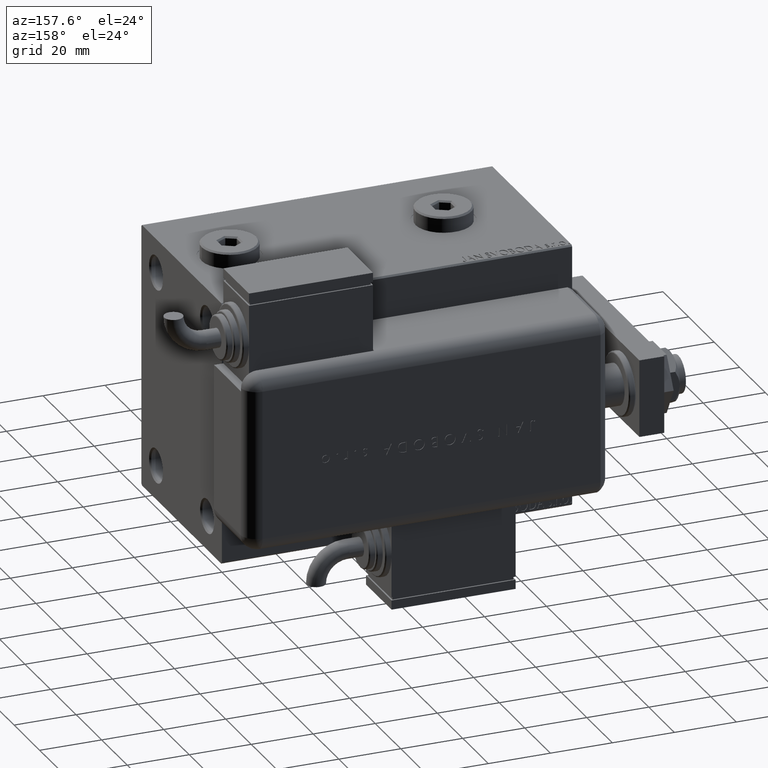
[diagram: clean part render]
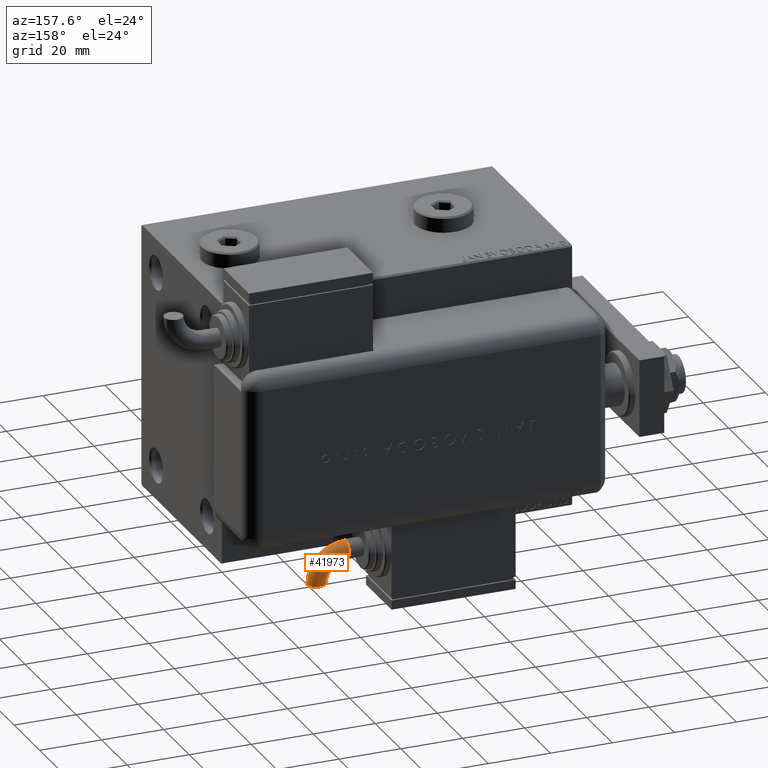
[diagram: same view with one face highlighted and labeled with its STEP entity id]
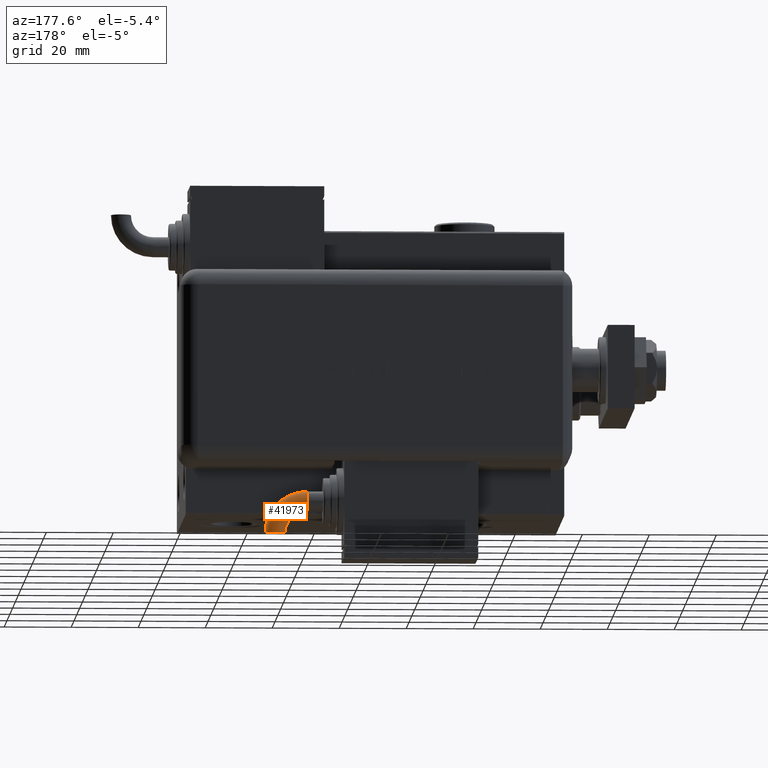
[diagram: same view with one face highlighted and labeled with its STEP entity id]
A machine part, auxiliary view. The second image highlights one B-rep face of the part: STEP entity #41973.
A second angle (auxiliary view) of the same face is appended — the face is thin or edge-on in the first view.
In plain terms, the highlighted toroidal blend (fillet) surface has major radius 9.5072 mm and minor (blend) radius 3 mm.
Its self-contained STEP definition (entity closure, byte-faithful):
#1597 = FACE_OUTER_BOUND ( 'NONE', #57714, .T. ) ;
#1768 = EDGE_CURVE ( 'NONE', #4390, #20438, #17097, .T. ) ;
#2754 = CARTESIAN_POINT ( 'NONE',  ( -40.25922829605691078, -9.507281895111381331, 0.000000000000000000 ) ) ;
#3059 = DIRECTION ( 'NONE',  ( -0.9999999999726024713, -7.402363701169985951E-06, 0.000000000000000000 ) ) ;
#3228 = CARTESIAN_POINT ( 'NONE',  ( -30.75201677704342274, -9.507211519273942812, 0.000000000000000000 ) ) ;
#4390 = VERTEX_POINT ( 'NONE', #56477 ) ;
#4871 = CARTESIAN_POINT ( 'NONE',  ( -30.75201677704342274, -9.507211519273942812, -3.673940397442055924E-16 ) ) ;
#7042 = AXIS2_PLACEMENT_3D ( 'NONE', #16353, #53907, #11399 ) ;
#7179 = DIRECTION ( 'NONE',  ( 1.000000000000000000, 0.000000000000000000, 0.000000000000000000 ) ) ;
#9981 = VERTEX_POINT ( 'NONE', #52132 ) ;
#11399 = DIRECTION ( 'NONE',  ( -1.156482317317872908E-15, 1.000000000000000000, 0.000000000000000000 ) ) ;
#11524 = DIRECTION ( 'NONE',  ( 0.000000000000000000, 0.000000000000000000, 1.000000000000000000 ) ) ;
#12149 = AXIS2_PLACEMENT_3D ( 'NONE', #22288, #36559, #45262 ) ;
#13621 = ORIENTED_EDGE ( 'NONE', *, *, #45709, .T. ) ;
#13874 = ORIENTED_EDGE ( 'NONE', *, *, #24961, .T. ) ;
#16353 = CARTESIAN_POINT ( 'NONE',  ( -30.75201677704342274, 2.081668171172168513E-14, 0.000000000000000000 ) ) ;
#17097 = CIRCLE ( 'NONE', #12149, 2.999999999999996003 ) ;
#17498 = DIRECTION ( 'NONE',  ( 1.000000000000000000, 0.000000000000000000, 0.000000000000000000 ) ) ;
#19822 = CARTESIAN_POINT ( 'NONE',  ( -30.75201677704341918, -2.999999999999976463, -3.673940397442056910E-16 ) ) ;
#20438 = VERTEX_POINT ( 'NONE', #39714 ) ;
#20677 = ORIENTED_EDGE ( 'NONE', *, *, #1768, .F. ) ;
#22170 = DIRECTION ( 'NONE',  ( 0.000000000000000000, 0.000000000000000000, 1.000000000000000000 ) ) ;
#22288 = CARTESIAN_POINT ( 'NONE',  ( -30.75201677704342274, 2.081668171172168513E-14, 0.000000000000000000 ) ) ;
#23814 = DIRECTION ( 'NONE',  ( 1.000000000000000000, 0.000000000000000000, 0.000000000000000000 ) ) ;
#23826 = CIRCLE ( 'NONE', #52512, 2.999999999999996891 ) ;
#24017 = AXIS2_PLACEMENT_3D ( 'NONE', #4871, #27559, #23814 ) ;
#24709 = ORIENTED_EDGE ( 'NONE', *, *, #59041, .F. ) ;
#24961 = EDGE_CURVE ( 'NONE', #9981, #48806, #23826, .T. ) ;
#26649 = DIRECTION ( 'NONE',  ( -7.402363701065945741E-06, 0.9999999999726024713, 0.000000000000000000 ) ) ;
#27559 = DIRECTION ( 'NONE',  ( 0.000000000000000000, 0.000000000000000000, 1.000000000000000000 ) ) ;
#30480 = EDGE_CURVE ( 'NONE', #38465, #48806, #50763, .T. ) ;
#36559 = DIRECTION ( 'NONE',  ( 1.000000000000000000, 1.025520576932673761E-15, 0.000000000000000000 ) ) ;
#38465 = VERTEX_POINT ( 'NONE', #19822 ) ;
#39714 = CARTESIAN_POINT ( 'NONE',  ( -30.75201677704342274, 2.081668171172168829E-14, 2.999999999999997335 ) ) ;
#39773 = CIRCLE ( 'NONE', #7042, 2.999999999999996003 ) ;
#41973 = ADVANCED_FACE ( 'NONE', ( #1597 ), #46992, .T. ) ;
#45262 = DIRECTION ( 'NONE',  ( -1.156482317317872908E-15, 1.000000000000000000, 0.000000000000000000 ) ) ;
#45709 = EDGE_CURVE ( 'NONE', #4390, #9981, #51098, .T. ) ;
#46150 = AXIS2_PLACEMENT_3D ( 'NONE', #3228, #22170, #17498 ) ;
#46992 = TOROIDAL_SURFACE ( 'NONE', #54903, 9.507211519273964129, 2.999999999999996891 ) ;
#48806 = VERTEX_POINT ( 'NONE', #50690 ) ;
#49075 = CARTESIAN_POINT ( 'NONE',  ( -30.75201677704342274, -9.507211519273942812, 0.000000000000000000 ) ) ;
#50690 = CARTESIAN_POINT ( 'NONE',  ( -37.25922829613910636, -9.507259688020280208, -3.673940397551225891E-16 ) ) ;
#50763 = CIRCLE ( 'NONE', #24017, 6.507211519273966793 ) ;
#51098 = CIRCLE ( 'NONE', #46150, 12.50721151927396058 ) ;
#52132 = CARTESIAN_POINT ( 'NONE',  ( -43.25922829597471519, -9.507304102202486007, 0.000000000000000000 ) ) ;
#52512 = AXIS2_PLACEMENT_3D ( 'NONE', #2754, #26649, #3059 ) ;
#53907 = DIRECTION ( 'NONE',  ( 1.000000000000000000, 1.025520576932673761E-15, 0.000000000000000000 ) ) ;
#54903 = AXIS2_PLACEMENT_3D ( 'NONE', #49075, #11524, #7179 ) ;
#56477 = CARTESIAN_POINT ( 'NONE',  ( -30.75201677704342629, 3.000000000000017319, 0.000000000000000000 ) ) ;
#57714 = EDGE_LOOP ( 'NONE', ( #20677, #13621, #13874, #57716, #24709 ) ) ;
#57716 = ORIENTED_EDGE ( 'NONE', *, *, #30480, .F. ) ;
#59041 = EDGE_CURVE ( 'NONE', #20438, #38465, #39773, .T. ) ;